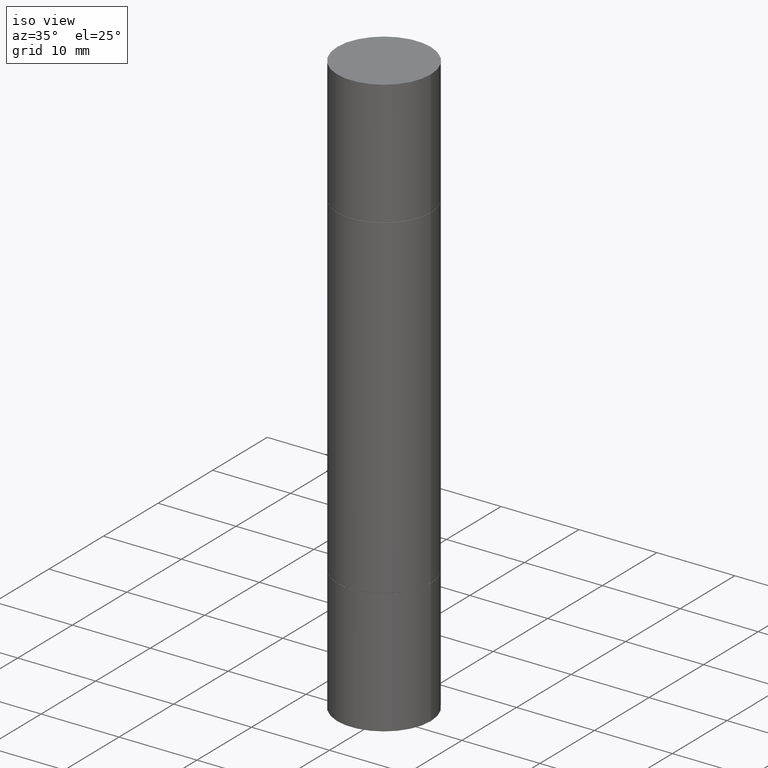
[diagram: clean part render]
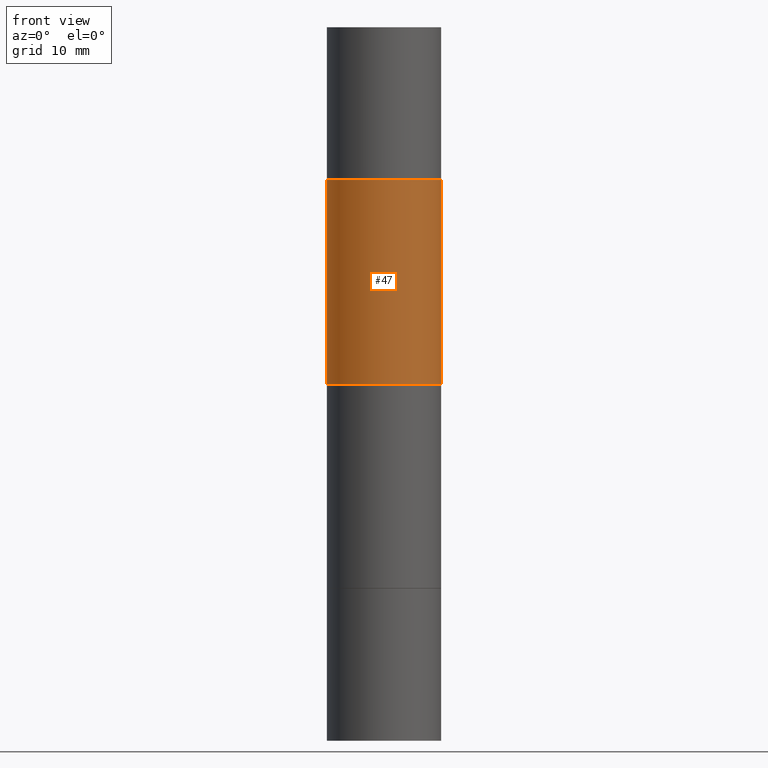
[diagram: tour spotlight — one face highlighted and labeled with its STEP entity id]
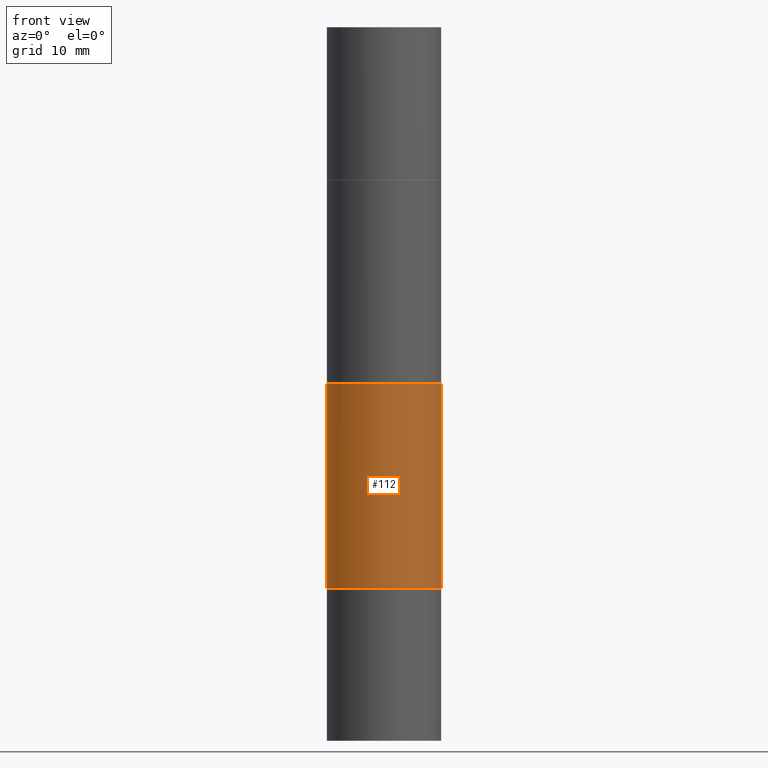
[diagram: tour spotlight — one face highlighted and labeled with its STEP entity id]
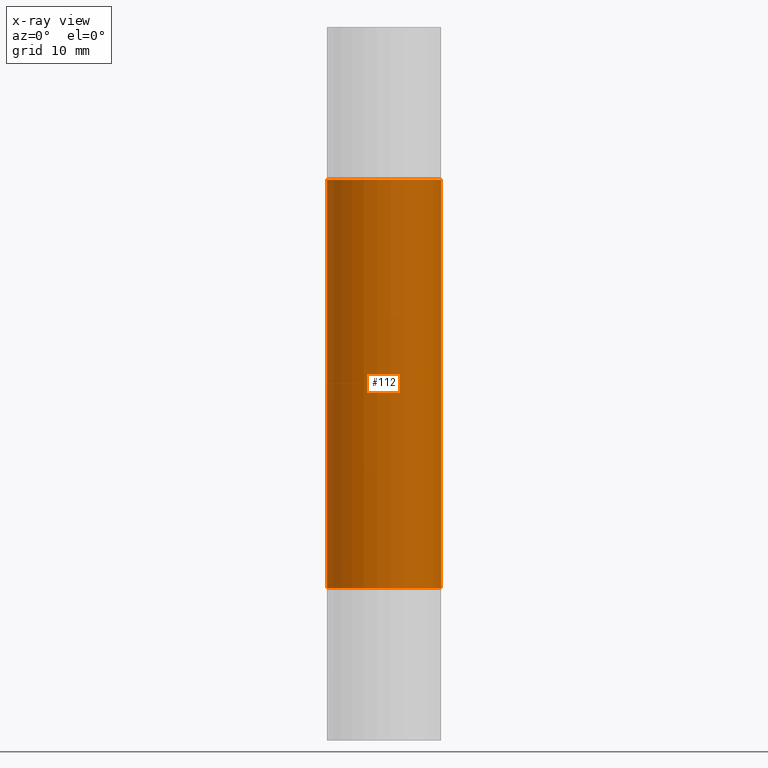
[diagram: x-ray of the same camera — body ghosted, this tour face saturated]
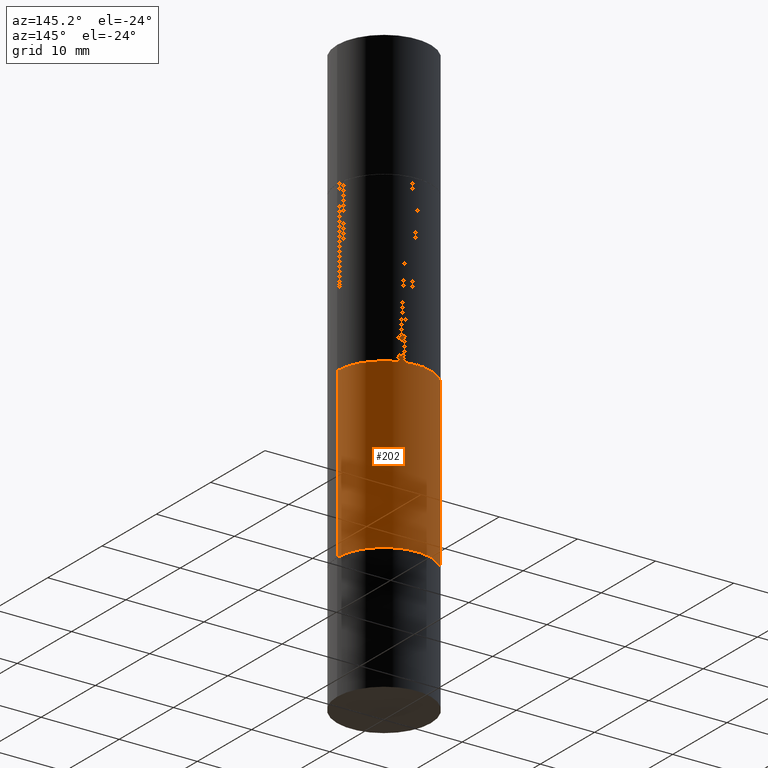
[diagram: tour spotlight — one face highlighted and labeled with its STEP entity id]
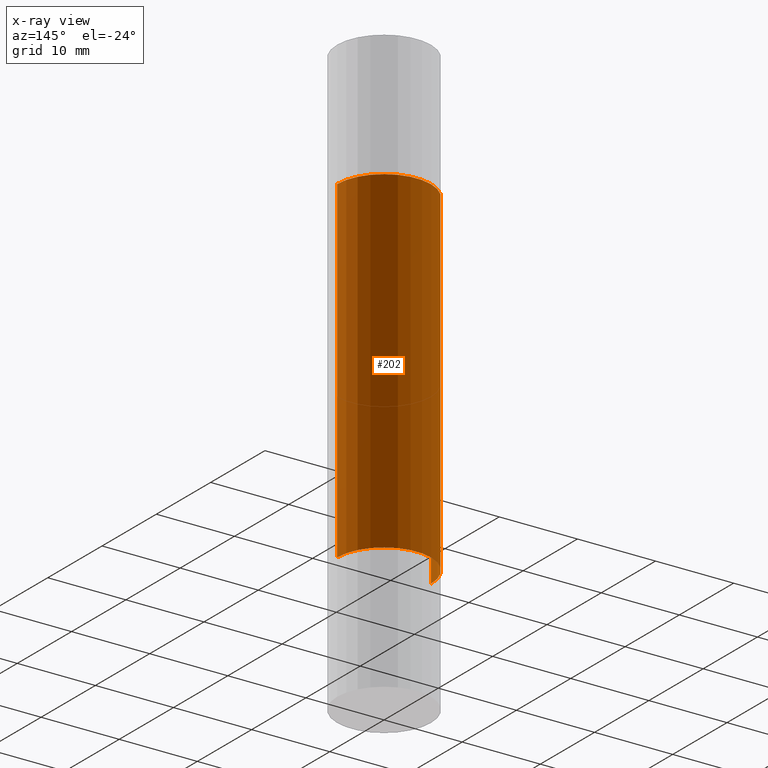
[diagram: x-ray of the same camera — body ghosted, this tour face saturated]
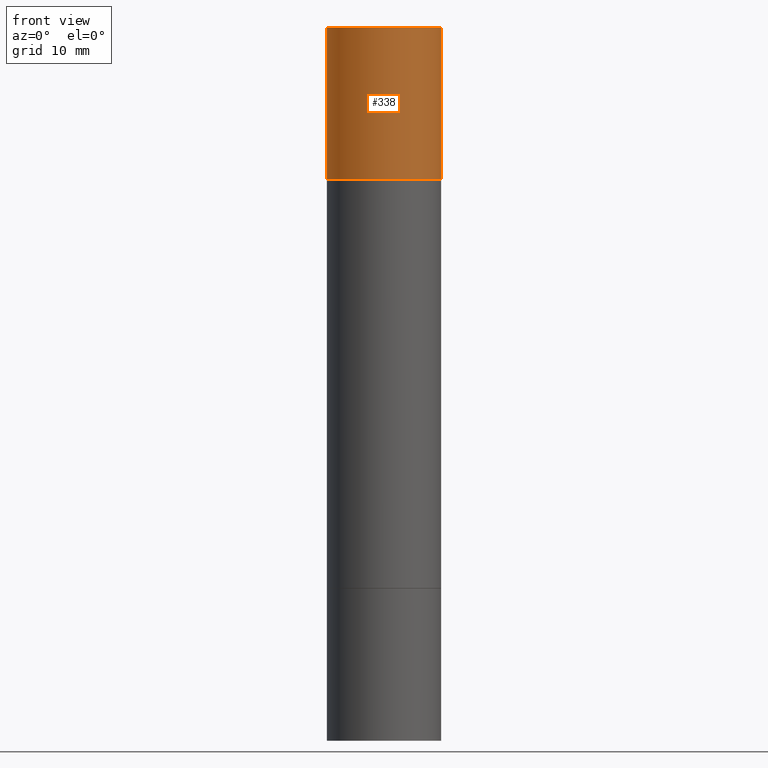
[diagram: tour spotlight — one face highlighted and labeled with its STEP entity id]
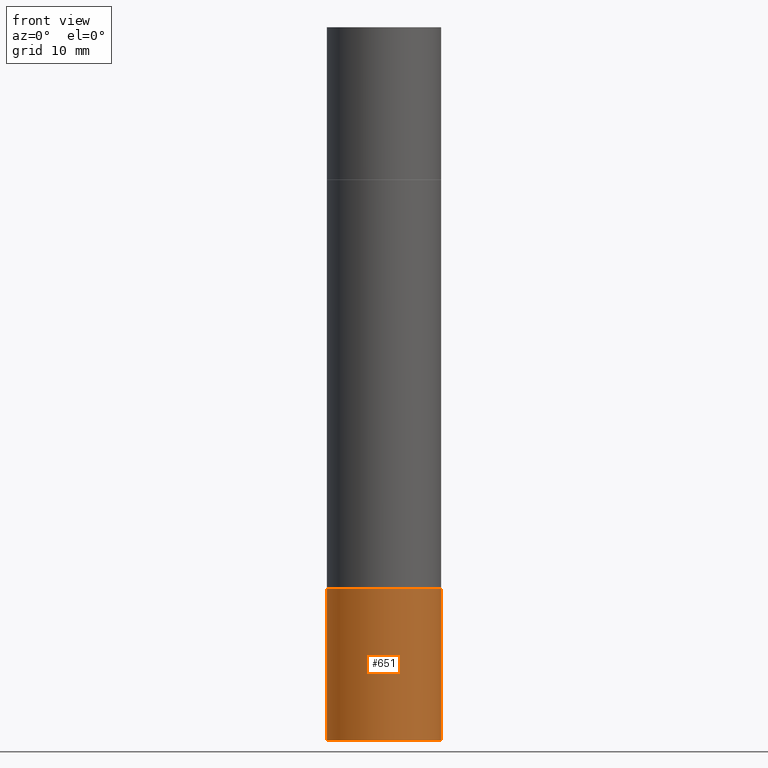
[diagram: tour spotlight — one face highlighted and labeled with its STEP entity id]
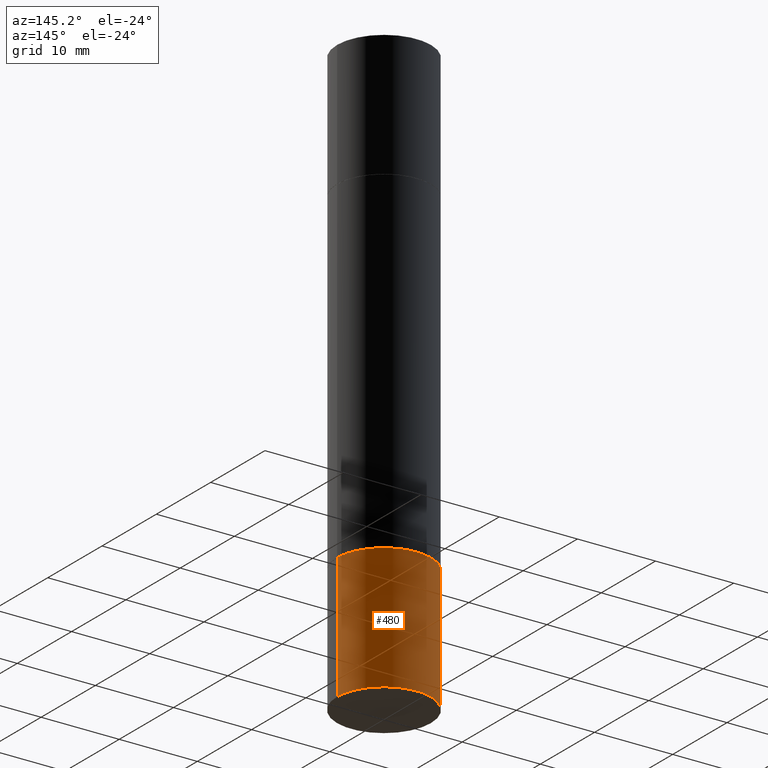
[diagram: tour spotlight — one face highlighted and labeled with its STEP entity id]
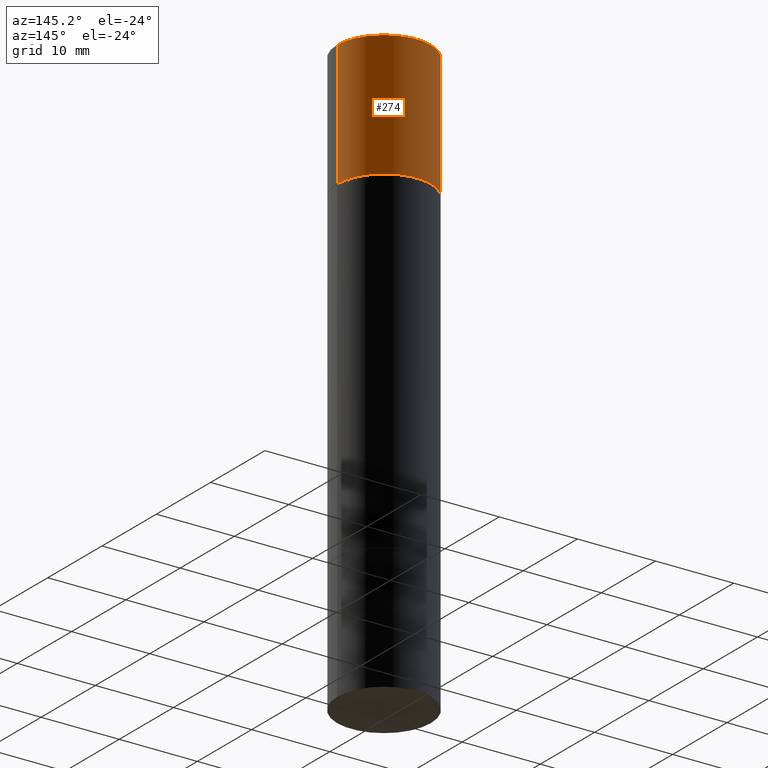
[diagram: tour spotlight — one face highlighted and labeled with its STEP entity id]
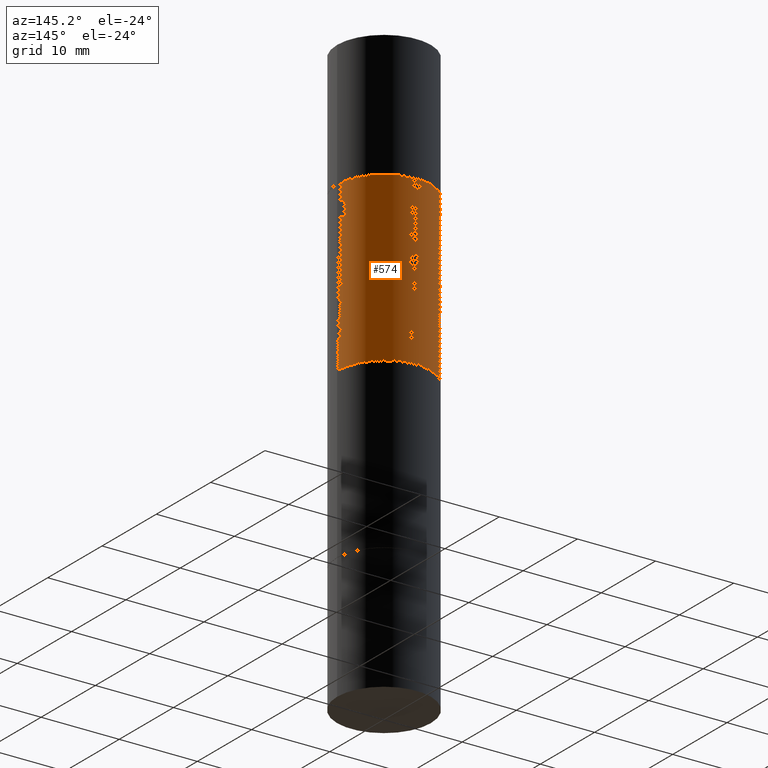
[diagram: tour spotlight — one face highlighted and labeled with its STEP entity id]
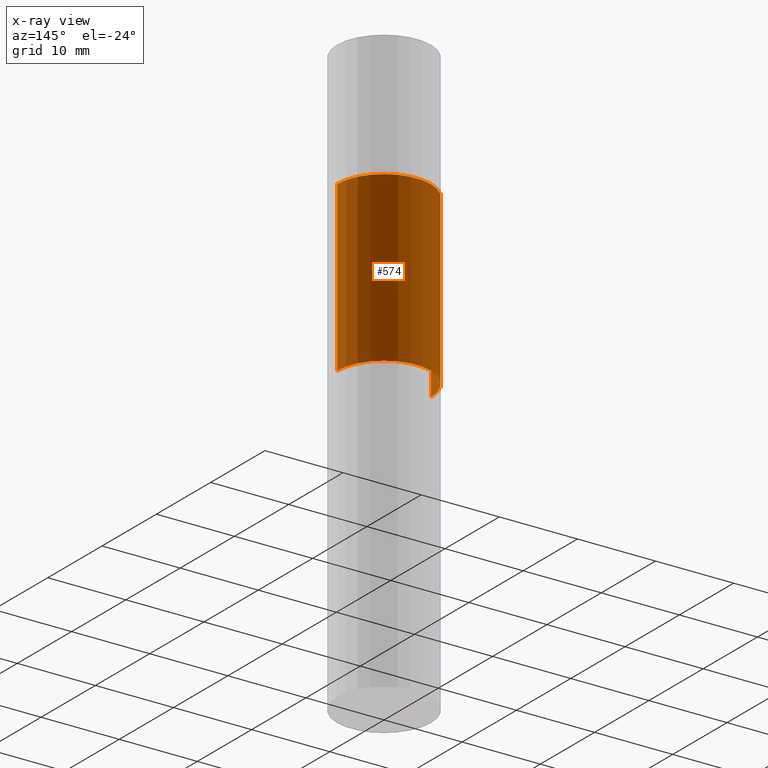
[diagram: x-ray of the same camera — body ghosted, this tour face saturated]
A machine part: a face-by-face anatomy tour. The part has 26 B-rep faces; the first image is the clean iso view, then the 8 largest visible faces are spotlighted one at a time (largest first), each with its STEP entity span.

Face 1 — front view, entity #47. In plain terms, the highlighted cylindrical surface (partial cylindrical patch) has radius 5.9995 mm, axis along (-0, -0, -1).
Definition (entity closure, byte-faithful):
#10 = AXIS2_PLACEMENT_3D ( 'NONE', #135, #549, #554 ) ;
#47 = ADVANCED_FACE ( 'NONE', ( #537 ), #293, .T. ) ;
#68 = DIRECTION ( 'NONE',  ( -2.445468806185136877E-29, -3.492890411551753071E-15, -1.000000000000000000 ) ) ;
#69 = CARTESIAN_POINT ( 'NONE',  ( 0.000000000000000000, -1.031172645228302408E-14, -2.952799999999998981 ) ) ;
#80 = DIRECTION ( 'NONE',  ( -2.445468806185136597E-29, -3.492890411551752677E-15, -1.000000000000000000 ) ) ;
#82 = EDGE_CURVE ( 'NONE', #231, #137, #551, .T. ) ;
#85 = CARTESIAN_POINT ( 'NONE',  ( 0.2361999999999998545, -5.327579411654007610E-15, -1.476399999999999491 ) ) ;
#126 = CARTESIAN_POINT ( 'NONE',  ( -0.2361999999999999933, -5.811345786273763077E-16, -0.6308999999999995723 ) ) ;
#135 = CARTESIAN_POINT ( 'NONE',  ( 5.678134021081268339E-29, -2.201584205701010795E-15, -0.6308999999999995723 ) ) ;
#137 = VERTEX_POINT ( 'NONE', #617 ) ;
#145 = DIRECTION ( 'NONE',  ( -2.445468806185136877E-29, -3.492890411551753071E-15, -1.000000000000000000 ) ) ;
#165 = AXIS2_PLACEMENT_3D ( 'NONE', #69, #80, #290 ) ;
#199 = CARTESIAN_POINT ( 'NONE',  ( 0.2361999999999998545, -1.196110223675252060E-14, -2.952799999999998981 ) ) ;
#201 = EDGE_CURVE ( 'NONE', #341, #231, #448, .T. ) ;
#212 = CARTESIAN_POINT ( 'NONE',  ( 0.2361999999999999933, -3.850959990170508109E-15, -0.6308999999999995723 ) ) ;
#230 = EDGE_CURVE ( 'NONE', #440, #341, #607, .T. ) ;
#231 = VERTEX_POINT ( 'NONE', #85 ) ;
#238 = VECTOR ( 'NONE', #68, 39.37007874015748143 ) ;
#278 = LINE ( 'NONE', #649, #238 ) ;
#290 = DIRECTION ( 'NONE',  ( 1.000000000000000000, -6.982962677686269077E-15, 0.000000000000000000 ) ) ;
#293 = CYLINDRICAL_SURFACE ( 'NONE', #165, 0.2361999999999998545 ) ;
#341 = VERTEX_POINT ( 'NONE', #212 ) ;
#364 = ORIENTED_EDGE ( 'NONE', *, *, #399, .T. ) ;
#382 = CARTESIAN_POINT ( 'NONE',  ( 3.610490145451734531E-29, -5.154823048668018475E-15, -1.476399999999999491 ) ) ;
#399 = EDGE_CURVE ( 'NONE', #440, #137, #278, .T. ) ;
#440 = VERTEX_POINT ( 'NONE', #126 ) ;
#448 = LINE ( 'NONE', #199, #621 ) ;
#488 = DIRECTION ( 'NONE',  ( 0.000000000000000000, 1.000000000000000000, -3.469747663417779369E-15 ) ) ;
#500 = AXIS2_PLACEMENT_3D ( 'NONE', #382, #587, #488 ) ;
#516 = ORIENTED_EDGE ( 'NONE', *, *, #82, .F. ) ;
#537 = FACE_OUTER_BOUND ( 'NONE', #593, .T. ) ;
#549 = DIRECTION ( 'NONE',  ( 2.445468806185136597E-29, 3.492890411551752677E-15, 1.000000000000000000 ) ) ;
#551 = CIRCLE ( 'NONE', #500, 0.2361999999999998545 ) ;
#554 = DIRECTION ( 'NONE',  ( 1.000000000000000000, -6.982962677686266711E-15, 0.000000000000000000 ) ) ;
#587 = DIRECTION ( 'NONE',  ( -0.000000000000000000, -3.492185875197449130E-15, -1.000000000000000000 ) ) ;
#593 = EDGE_LOOP ( 'NONE', ( #673, #364, #516, #661 ) ) ;
#607 = CIRCLE ( 'NONE', #10, 0.2361999999999999933 ) ;
#617 = CARTESIAN_POINT ( 'NONE',  ( -0.2361999999999998545, -2.057754000110877584E-15, -1.476399999999999491 ) ) ;
#621 = VECTOR ( 'NONE', #145, 39.37007874015748143 ) ;
#649 = CARTESIAN_POINT ( 'NONE',  ( -0.2361999999999998545, -8.691276825209390578E-15, -2.952799999999998981 ) ) ;
#661 = ORIENTED_EDGE ( 'NONE', *, *, #201, .F. ) ;
#673 = ORIENTED_EDGE ( 'NONE', *, *, #230, .F. ) ;

Face 2 — front view, entity #112. An x-ray twin of the same camera follows (body ghosted, this face saturated) — the face is partly hidden behind the body. In plain terms, the highlighted cylindrical surface (partial cylindrical patch) has radius 5.9995 mm, axis along (-0, -0, -1).
Definition (entity closure, byte-faithful):
#13 = EDGE_CURVE ( 'NONE', #327, #29, #562, .T. ) ;
#15 = LINE ( 'NONE', #216, #384 ) ;
#19 = DIRECTION ( 'NONE',  ( 2.445468806185136597E-29, 3.492890411551752677E-15, 1.000000000000000000 ) ) ;
#29 = VERTEX_POINT ( 'NONE', #547 ) ;
#50 = EDGE_LOOP ( 'NONE', ( #507, #162, #611, #669 ) ) ;
#112 = ADVANCED_FACE ( 'NONE', ( #499 ), #400, .T. ) ;
#119 = DIRECTION ( 'NONE',  ( -2.445468806185136597E-29, 3.491481338843145583E-15, 1.000000000000000000 ) ) ;
#121 = DIRECTION ( 'NONE',  ( 1.000000000000000000, -6.982962677686269077E-15, 0.000000000000000000 ) ) ;
#162 = ORIENTED_EDGE ( 'NONE', *, *, #535, .T. ) ;
#191 = DIRECTION ( 'NONE',  ( 1.000000000000000000, -6.982962677686269077E-15, 0.000000000000000000 ) ) ;
#214 = AXIS2_PLACEMENT_3D ( 'NONE', #491, #19, #232 ) ;
#216 = CARTESIAN_POINT ( 'NONE',  ( -0.2361999999999998545, -8.691276825209390578E-15, -2.952799999999998981 ) ) ;
#232 = DIRECTION ( 'NONE',  ( 1.000000000000000000, -6.982962677686266711E-15, 0.000000000000000000 ) ) ;
#233 = CARTESIAN_POINT ( 'NONE',  ( 5.678134021081268339E-29, -8.106870520659897761E-15, -2.321899999999999409 ) ) ;
#268 = CARTESIAN_POINT ( 'NONE',  ( 0.2361999999999999933, -3.850959990170508109E-15, -0.6308999999999995723 ) ) ;
#272 = AXIS2_PLACEMENT_3D ( 'NONE', #233, #119, #121 ) ;
#310 = VERTEX_POINT ( 'NONE', #268 ) ;
#323 = CARTESIAN_POINT ( 'NONE',  ( 0.2361999999999998545, -1.196110223675252060E-14, -2.952799999999998981 ) ) ;
#327 = VERTEX_POINT ( 'NONE', #373 ) ;
#328 = EDGE_CURVE ( 'NONE', #310, #29, #515, .T. ) ;
#373 = CARTESIAN_POINT ( 'NONE',  ( -0.2362000000000000210, -3.534373421594380241E-15, -2.321899999999999409 ) ) ;
#384 = VECTOR ( 'NONE', #640, 39.37007874015748143 ) ;
#400 = CYLINDRICAL_SURFACE ( 'NONE', #575, 0.2361999999999998545 ) ;
#457 = DIRECTION ( 'NONE',  ( -2.445468806185136597E-29, -3.492890411551752677E-15, -1.000000000000000000 ) ) ;
#485 = EDGE_CURVE ( 'NONE', #514, #310, #667, .T. ) ;
#487 = VECTOR ( 'NONE', #628, 39.37007874015748143 ) ;
#491 = CARTESIAN_POINT ( 'NONE',  ( 5.678134021081268339E-29, -2.201584205701010795E-15, -0.6308999999999995723 ) ) ;
#499 = FACE_OUTER_BOUND ( 'NONE', #50, .T. ) ;
#507 = ORIENTED_EDGE ( 'NONE', *, *, #485, .F. ) ;
#514 = VERTEX_POINT ( 'NONE', #538 ) ;
#515 = LINE ( 'NONE', #323, #487 ) ;
#535 = EDGE_CURVE ( 'NONE', #514, #327, #15, .T. ) ;
#538 = CARTESIAN_POINT ( 'NONE',  ( -0.2361999999999999933, -5.811345786273763077E-16, -0.6308999999999995723 ) ) ;
#547 = CARTESIAN_POINT ( 'NONE',  ( 0.2361999999999999933, -9.756246305129394287E-15, -2.321899999999999409 ) ) ;
#562 = CIRCLE ( 'NONE', #272, 0.2361999999999999933 ) ;
#575 = AXIS2_PLACEMENT_3D ( 'NONE', #606, #457, #191 ) ;
#606 = CARTESIAN_POINT ( 'NONE',  ( 0.000000000000000000, -1.031172645228302408E-14, -2.952799999999998981 ) ) ;
#611 = ORIENTED_EDGE ( 'NONE', *, *, #13, .T. ) ;
#628 = DIRECTION ( 'NONE',  ( -2.445468806185136877E-29, -3.492890411551753071E-15, -1.000000000000000000 ) ) ;
#640 = DIRECTION ( 'NONE',  ( -2.445468806185136877E-29, -3.492890411551753071E-15, -1.000000000000000000 ) ) ;
#667 = CIRCLE ( 'NONE', #214, 0.2361999999999999933 ) ;
#669 = ORIENTED_EDGE ( 'NONE', *, *, #328, .F. ) ;

Face 3 — auxiliary view, entity #202. An x-ray twin of the same camera follows (body ghosted, this face saturated) — the face is partly hidden behind the body. In plain terms, the highlighted cylindrical surface (partial cylindrical patch) has radius 5.9995 mm, axis along (-0, -0, -1).
Definition (entity closure, byte-faithful):
#15 = LINE ( 'NONE', #216, #384 ) ;
#29 = VERTEX_POINT ( 'NONE', #547 ) ;
#40 = ORIENTED_EDGE ( 'NONE', *, *, #328, .T. ) ;
#86 = AXIS2_PLACEMENT_3D ( 'NONE', #456, #459, #248 ) ;
#98 = ORIENTED_EDGE ( 'NONE', *, *, #535, .F. ) ;
#131 = DIRECTION ( 'NONE',  ( -2.445468806185136597E-29, -3.492890411551752677E-15, -1.000000000000000000 ) ) ;
#198 = DIRECTION ( 'NONE',  ( -2.445468806185136597E-29, 3.491481338843145583E-15, 1.000000000000000000 ) ) ;
#202 = ADVANCED_FACE ( 'NONE', ( #665 ), #513, .T. ) ;
#216 = CARTESIAN_POINT ( 'NONE',  ( -0.2361999999999998545, -8.691276825209390578E-15, -2.952799999999998981 ) ) ;
#248 = DIRECTION ( 'NONE',  ( 1.000000000000000000, -6.982962677686266711E-15, 0.000000000000000000 ) ) ;
#268 = CARTESIAN_POINT ( 'NONE',  ( 0.2361999999999999933, -3.850959990170508109E-15, -0.6308999999999995723 ) ) ;
#301 = CARTESIAN_POINT ( 'NONE',  ( 0.000000000000000000, -1.031172645228302408E-14, -2.952799999999998981 ) ) ;
#310 = VERTEX_POINT ( 'NONE', #268 ) ;
#323 = CARTESIAN_POINT ( 'NONE',  ( 0.2361999999999998545, -1.196110223675252060E-14, -2.952799999999998981 ) ) ;
#327 = VERTEX_POINT ( 'NONE', #373 ) ;
#328 = EDGE_CURVE ( 'NONE', #310, #29, #515, .T. ) ;
#345 = DIRECTION ( 'NONE',  ( 1.000000000000000000, -6.982962677686269077E-15, 0.000000000000000000 ) ) ;
#373 = CARTESIAN_POINT ( 'NONE',  ( -0.2362000000000000210, -3.534373421594380241E-15, -2.321899999999999409 ) ) ;
#384 = VECTOR ( 'NONE', #640, 39.37007874015748143 ) ;
#394 = CIRCLE ( 'NONE', #502, 0.2361999999999999933 ) ;
#444 = CIRCLE ( 'NONE', #86, 0.2361999999999999933 ) ;
#447 = CARTESIAN_POINT ( 'NONE',  ( 5.678134021081268339E-29, -8.106870520659897761E-15, -2.321899999999999409 ) ) ;
#456 = CARTESIAN_POINT ( 'NONE',  ( 5.678134021081268339E-29, -2.201584205701010795E-15, -0.6308999999999995723 ) ) ;
#459 = DIRECTION ( 'NONE',  ( 2.445468806185136597E-29, 3.492890411551752677E-15, 1.000000000000000000 ) ) ;
#487 = VECTOR ( 'NONE', #628, 39.37007874015748143 ) ;
#502 = AXIS2_PLACEMENT_3D ( 'NONE', #447, #198, #508 ) ;
#508 = DIRECTION ( 'NONE',  ( 1.000000000000000000, -6.982962677686269077E-15, 0.000000000000000000 ) ) ;
#513 = CYLINDRICAL_SURFACE ( 'NONE', #539, 0.2361999999999998545 ) ;
#514 = VERTEX_POINT ( 'NONE', #538 ) ;
#515 = LINE ( 'NONE', #323, #487 ) ;
#535 = EDGE_CURVE ( 'NONE', #514, #327, #15, .T. ) ;
#538 = CARTESIAN_POINT ( 'NONE',  ( -0.2361999999999999933, -5.811345786273763077E-16, -0.6308999999999995723 ) ) ;
#539 = AXIS2_PLACEMENT_3D ( 'NONE', #301, #131, #345 ) ;
#547 = CARTESIAN_POINT ( 'NONE',  ( 0.2361999999999999933, -9.756246305129394287E-15, -2.321899999999999409 ) ) ;
#601 = ORIENTED_EDGE ( 'NONE', *, *, #624, .F. ) ;
#624 = EDGE_CURVE ( 'NONE', #310, #514, #444, .T. ) ;
#626 = ORIENTED_EDGE ( 'NONE', *, *, #677, .T. ) ;
#628 = DIRECTION ( 'NONE',  ( -2.445468806185136877E-29, -3.492890411551753071E-15, -1.000000000000000000 ) ) ;
#640 = DIRECTION ( 'NONE',  ( -2.445468806185136877E-29, -3.492890411551753071E-15, -1.000000000000000000 ) ) ;
#644 = EDGE_LOOP ( 'NONE', ( #98, #601, #40, #626 ) ) ;
#665 = FACE_OUTER_BOUND ( 'NONE', #644, .T. ) ;
#677 = EDGE_CURVE ( 'NONE', #29, #327, #394, .T. ) ;

Face 4 — front view, entity #338. In plain terms, the highlighted cylindrical surface (partial cylindrical patch) has radius 5.9995 mm, axis along (-0, -0, -1).
Definition (entity closure, byte-faithful):
#6 = VERTEX_POINT ( 'NONE', #495 ) ;
#9 = CARTESIAN_POINT ( 'NONE',  ( 0.000000000000000000, -1.031172645228302408E-14, -2.952799999999998981 ) ) ;
#46 = DIRECTION ( 'NONE',  ( -2.445468806185136877E-29, -3.492890411551753071E-15, -1.000000000000000000 ) ) ;
#61 = DIRECTION ( 'NONE',  ( 1.000000000000000000, -6.982962677686265133E-15, 0.000000000000000000 ) ) ;
#81 = EDGE_CURVE ( 'NONE', #6, #630, #164, .T. ) ;
#122 = DIRECTION ( 'NONE',  ( 1.000000000000000000, -6.982962677686266711E-15, 0.000000000000000000 ) ) ;
#123 = CARTESIAN_POINT ( 'NONE',  ( -0.2361999999999999933, -8.691276825209387423E-15, -2.952799999999998981 ) ) ;
#147 = AXIS2_PLACEMENT_3D ( 'NONE', #594, #163, #122 ) ;
#159 = DIRECTION ( 'NONE',  ( 2.445468806185136597E-29, 3.492890411551752677E-15, 1.000000000000000000 ) ) ;
#163 = DIRECTION ( 'NONE',  ( 2.445468806185136597E-29, 3.492890411551752677E-15, 1.000000000000000000 ) ) ;
#164 = LINE ( 'NONE', #123, #383 ) ;
#175 = EDGE_CURVE ( 'NONE', #358, #482, #408, .T. ) ;
#215 = CARTESIAN_POINT ( 'NONE',  ( 0.2361999999999999933, -1.647295429522506636E-15, 5.463695987328526437E-16 ) ) ;
#217 = DIRECTION ( 'NONE',  ( -2.445468806185136877E-29, -3.492890411551753071E-15, -1.000000000000000000 ) ) ;
#325 = FACE_OUTER_BOUND ( 'NONE', #618, .T. ) ;
#338 = ADVANCED_FACE ( 'NONE', ( #325 ), #582, .T. ) ;
#358 = VERTEX_POINT ( 'NONE', #215 ) ;
#360 = VECTOR ( 'NONE', #46, 39.37007874015748143 ) ;
#361 = EDGE_CURVE ( 'NONE', #6, #358, #563, .T. ) ;
#376 = DIRECTION ( 'NONE',  ( 1.000000000000000000, -6.982962677686266711E-15, 0.000000000000000000 ) ) ;
#383 = VECTOR ( 'NONE', #217, 39.37007874015748143 ) ;
#388 = ORIENTED_EDGE ( 'NONE', *, *, #81, .T. ) ;
#408 = LINE ( 'NONE', #413, #360 ) ;
#413 = CARTESIAN_POINT ( 'NONE',  ( 0.2361999999999999933, -1.196110223675252060E-14, -2.952799999999998981 ) ) ;
#437 = ORIENTED_EDGE ( 'NONE', *, *, #175, .F. ) ;
#454 = AXIS2_PLACEMENT_3D ( 'NONE', #9, #475, #61 ) ;
#465 = EDGE_CURVE ( 'NONE', #630, #482, #489, .T. ) ;
#475 = DIRECTION ( 'NONE',  ( -2.445468806185136597E-29, -3.492890411551752677E-15, -1.000000000000000000 ) ) ;
#482 = VERTEX_POINT ( 'NONE', #536 ) ;
#489 = CIRCLE ( 'NONE', #147, 0.2361999999999999933 ) ;
#495 = CARTESIAN_POINT ( 'NONE',  ( -0.2361999999999999933, 5.224441469024009929E-16, 5.463695987328566866E-16 ) ) ;
#520 = ORIENTED_EDGE ( 'NONE', *, *, #465, .T. ) ;
#536 = CARTESIAN_POINT ( 'NONE',  ( 0.2361999999999999933, -3.847467099758956361E-15, -0.6298999999999994603 ) ) ;
#563 = CIRCLE ( 'NONE', #636, 0.2361999999999999933 ) ;
#582 = CYLINDRICAL_SURFACE ( 'NONE', #454, 0.2361999999999999933 ) ;
#594 = CARTESIAN_POINT ( 'NONE',  ( 5.680579489887452821E-29, -2.198091315289460230E-15, -0.6298999999999994603 ) ) ;
#598 = ORIENTED_EDGE ( 'NONE', *, *, #361, .F. ) ;
#618 = EDGE_LOOP ( 'NONE', ( #598, #388, #520, #437 ) ) ;
#630 = VERTEX_POINT ( 'NONE', #664 ) ;
#636 = AXIS2_PLACEMENT_3D ( 'NONE', #637, #159, #376 ) ;
#637 = CARTESIAN_POINT ( 'NONE',  ( 7.220980290903470182E-29, 2.080354946989631982E-18, 5.463695987328526437E-16 ) ) ;
#664 = CARTESIAN_POINT ( 'NONE',  ( -0.2361999999999999933, 5.224441469024009929E-16, -0.6298999999999994603 ) ) ;

Face 5 — front view, entity #651. In plain terms, the highlighted cylindrical surface (partial cylindrical patch) has radius 5.9995 mm, axis along (-0, 0, 1).
Definition (entity closure, byte-faithful):
#26 = VERTEX_POINT ( 'NONE', #179 ) ;
#34 = EDGE_CURVE ( 'NONE', #26, #337, #43, .T. ) ;
#43 = CIRCLE ( 'NONE', #530, 0.2361999999999999933 ) ;
#57 = LINE ( 'NONE', #638, #468 ) ;
#73 = CARTESIAN_POINT ( 'NONE',  ( 7.220980290903470182E-29, -1.030964609733603853E-14, -2.952799999999999869 ) ) ;
#79 = LINE ( 'NONE', #195, #136 ) ;
#90 = CARTESIAN_POINT ( 'NONE',  ( 0.2361999999999999933, -9.759737786468237294E-15, -2.322899999999999743 ) ) ;
#136 = VECTOR ( 'NONE', #503, 39.37007874015748143 ) ;
#141 = EDGE_CURVE ( 'NONE', #510, #652, #654, .T. ) ;
#169 = ORIENTED_EDGE ( 'NONE', *, *, #34, .T. ) ;
#179 = CARTESIAN_POINT ( 'NONE',  ( -0.2361999999999999933, -7.531702107802033254E-15, -2.952799999999999869 ) ) ;
#182 = DIRECTION ( 'NONE',  ( 1.000000000000000000, -6.982962677686266711E-15, 4.876176775795936353E-29 ) ) ;
#186 = DIRECTION ( 'NONE',  ( -2.445468806185136597E-29, 3.491481338843145583E-15, 1.000000000000000000 ) ) ;
#195 = CARTESIAN_POINT ( 'NONE',  ( 0.2361999999999999933, -1.649375784469496131E-15, 1.151752954443000088E-29 ) ) ;
#213 = AXIS2_PLACEMENT_3D ( 'NONE', #403, #186, #659 ) ;
#222 = AXIS2_PLACEMENT_3D ( 'NONE', #674, #556, #182 ) ;
#242 = FACE_OUTER_BOUND ( 'NONE', #453, .T. ) ;
#265 = DIRECTION ( 'NONE',  ( -2.445468806185136877E-29, 3.491481338843145188E-15, 1.000000000000000000 ) ) ;
#279 = DIRECTION ( 'NONE',  ( -2.445468806185136597E-29, 3.491481338843145583E-15, 1.000000000000000000 ) ) ;
#304 = ORIENTED_EDGE ( 'NONE', *, *, #309, .F. ) ;
#309 = EDGE_CURVE ( 'NONE', #26, #510, #57, .T. ) ;
#337 = VERTEX_POINT ( 'NONE', #526 ) ;
#403 = CARTESIAN_POINT ( 'NONE',  ( 5.680579489887452821E-29, -8.110362001998742346E-15, -2.322899999999999743 ) ) ;
#433 = CARTESIAN_POINT ( 'NONE',  ( -0.2361999999999999933, -7.531702107802033254E-15, -2.322899999999999743 ) ) ;
#453 = EDGE_LOOP ( 'NONE', ( #304, #169, #471, #534 ) ) ;
#468 = VECTOR ( 'NONE', #265, 39.37007874015748143 ) ;
#471 = ORIENTED_EDGE ( 'NONE', *, *, #599, .T. ) ;
#503 = DIRECTION ( 'NONE',  ( -2.445468806185136877E-29, 3.491481338843145188E-15, 1.000000000000000000 ) ) ;
#510 = VERTEX_POINT ( 'NONE', #433 ) ;
#512 = CYLINDRICAL_SURFACE ( 'NONE', #222, 0.2361999999999999933 ) ;
#526 = CARTESIAN_POINT ( 'NONE',  ( 0.2361999999999999933, -1.195902188180553348E-14, -2.952799999999999869 ) ) ;
#530 = AXIS2_PLACEMENT_3D ( 'NONE', #73, #279, #647 ) ;
#534 = ORIENTED_EDGE ( 'NONE', *, *, #141, .F. ) ;
#556 = DIRECTION ( 'NONE',  ( -2.445468806185136597E-29, 3.491481338843145583E-15, 1.000000000000000000 ) ) ;
#599 = EDGE_CURVE ( 'NONE', #337, #652, #79, .T. ) ;
#638 = CARTESIAN_POINT ( 'NONE',  ( -0.2361999999999999933, 1.678301941865356591E-15, -1.161852468318208757E-29 ) ) ;
#647 = DIRECTION ( 'NONE',  ( 1.000000000000000000, -6.982962677686265133E-15, 0.000000000000000000 ) ) ;
#651 = ADVANCED_FACE ( 'NONE', ( #242 ), #512, .T. ) ;
#652 = VERTEX_POINT ( 'NONE', #90 ) ;
#654 = CIRCLE ( 'NONE', #213, 0.2361999999999999933 ) ;
#659 = DIRECTION ( 'NONE',  ( 1.000000000000000000, -6.982962677686265133E-15, 0.000000000000000000 ) ) ;
#674 = CARTESIAN_POINT ( 'NONE',  ( 0.000000000000000000, 0.000000000000000000, 0.000000000000000000 ) ) ;

Face 6 — auxiliary view, entity #480. In plain terms, the highlighted cylindrical surface (partial cylindrical patch) has radius 5.9995 mm, axis along (-0, 0, 1).
Definition (entity closure, byte-faithful):
#26 = VERTEX_POINT ( 'NONE', #179 ) ;
#27 = CARTESIAN_POINT ( 'NONE',  ( 0.000000000000000000, 0.000000000000000000, 0.000000000000000000 ) ) ;
#57 = LINE ( 'NONE', #638, #468 ) ;
#64 = EDGE_LOOP ( 'NONE', ( #76, #583, #294, #83 ) ) ;
#76 = ORIENTED_EDGE ( 'NONE', *, *, #608, .T. ) ;
#79 = LINE ( 'NONE', #195, #136 ) ;
#83 = ORIENTED_EDGE ( 'NONE', *, *, #599, .F. ) ;
#90 = CARTESIAN_POINT ( 'NONE',  ( 0.2361999999999999933, -9.759737786468237294E-15, -2.322899999999999743 ) ) ;
#120 = DIRECTION ( 'NONE',  ( 1.000000000000000000, -6.982962677686266711E-15, 4.876176775795936353E-29 ) ) ;
#136 = VECTOR ( 'NONE', #503, 39.37007874015748143 ) ;
#138 = DIRECTION ( 'NONE',  ( 1.000000000000000000, -6.982962677686265133E-15, 0.000000000000000000 ) ) ;
#179 = CARTESIAN_POINT ( 'NONE',  ( -0.2361999999999999933, -7.531702107802033254E-15, -2.952799999999999869 ) ) ;
#195 = CARTESIAN_POINT ( 'NONE',  ( 0.2361999999999999933, -1.649375784469496131E-15, 1.151752954443000088E-29 ) ) ;
#261 = AXIS2_PLACEMENT_3D ( 'NONE', #573, #421, #473 ) ;
#265 = DIRECTION ( 'NONE',  ( -2.445468806185136877E-29, 3.491481338843145188E-15, 1.000000000000000000 ) ) ;
#280 = CYLINDRICAL_SURFACE ( 'NONE', #362, 0.2361999999999999933 ) ;
#283 = CIRCLE ( 'NONE', #329, 0.2361999999999999933 ) ;
#294 = ORIENTED_EDGE ( 'NONE', *, *, #312, .F. ) ;
#309 = EDGE_CURVE ( 'NONE', #26, #510, #57, .T. ) ;
#312 = EDGE_CURVE ( 'NONE', #652, #510, #595, .T. ) ;
#329 = AXIS2_PLACEMENT_3D ( 'NONE', #411, #658, #138 ) ;
#337 = VERTEX_POINT ( 'NONE', #526 ) ;
#339 = FACE_OUTER_BOUND ( 'NONE', #64, .T. ) ;
#362 = AXIS2_PLACEMENT_3D ( 'NONE', #27, #486, #120 ) ;
#411 = CARTESIAN_POINT ( 'NONE',  ( 7.220980290903470182E-29, -1.030964609733603853E-14, -2.952799999999999869 ) ) ;
#421 = DIRECTION ( 'NONE',  ( -2.445468806185136597E-29, 3.491481338843145583E-15, 1.000000000000000000 ) ) ;
#433 = CARTESIAN_POINT ( 'NONE',  ( -0.2361999999999999933, -7.531702107802033254E-15, -2.322899999999999743 ) ) ;
#468 = VECTOR ( 'NONE', #265, 39.37007874015748143 ) ;
#473 = DIRECTION ( 'NONE',  ( 1.000000000000000000, -6.982962677686265133E-15, 0.000000000000000000 ) ) ;
#480 = ADVANCED_FACE ( 'NONE', ( #339 ), #280, .T. ) ;
#486 = DIRECTION ( 'NONE',  ( -2.445468806185136597E-29, 3.491481338843145583E-15, 1.000000000000000000 ) ) ;
#503 = DIRECTION ( 'NONE',  ( -2.445468806185136877E-29, 3.491481338843145188E-15, 1.000000000000000000 ) ) ;
#510 = VERTEX_POINT ( 'NONE', #433 ) ;
#526 = CARTESIAN_POINT ( 'NONE',  ( 0.2361999999999999933, -1.195902188180553348E-14, -2.952799999999999869 ) ) ;
#573 = CARTESIAN_POINT ( 'NONE',  ( 5.680579489887452821E-29, -8.110362001998742346E-15, -2.322899999999999743 ) ) ;
#583 = ORIENTED_EDGE ( 'NONE', *, *, #309, .T. ) ;
#595 = CIRCLE ( 'NONE', #261, 0.2361999999999999933 ) ;
#599 = EDGE_CURVE ( 'NONE', #337, #652, #79, .T. ) ;
#608 = EDGE_CURVE ( 'NONE', #337, #26, #283, .T. ) ;
#638 = CARTESIAN_POINT ( 'NONE',  ( -0.2361999999999999933, 1.678301941865356591E-15, -1.161852468318208757E-29 ) ) ;
#652 = VERTEX_POINT ( 'NONE', #90 ) ;
#658 = DIRECTION ( 'NONE',  ( -2.445468806185136597E-29, 3.491481338843145583E-15, 1.000000000000000000 ) ) ;

Face 7 — auxiliary view, entity #274. In plain terms, the highlighted cylindrical surface (partial cylindrical patch) has radius 5.9995 mm, axis along (-0, -0, -1).
Definition (entity closure, byte-faithful):
#2 = AXIS2_PLACEMENT_3D ( 'NONE', #67, #650, #25 ) ;
#6 = VERTEX_POINT ( 'NONE', #495 ) ;
#8 = DIRECTION ( 'NONE',  ( 1.000000000000000000, -6.982962677686265133E-15, 0.000000000000000000 ) ) ;
#25 = DIRECTION ( 'NONE',  ( 1.000000000000000000, -6.982962677686266711E-15, 0.000000000000000000 ) ) ;
#31 = AXIS2_PLACEMENT_3D ( 'NONE', #578, #59, #8 ) ;
#37 = ORIENTED_EDGE ( 'NONE', *, *, #81, .F. ) ;
#39 = DIRECTION ( 'NONE',  ( 1.000000000000000000, -6.982962677686266711E-15, 0.000000000000000000 ) ) ;
#46 = DIRECTION ( 'NONE',  ( -2.445468806185136877E-29, -3.492890411551753071E-15, -1.000000000000000000 ) ) ;
#59 = DIRECTION ( 'NONE',  ( -2.445468806185136597E-29, -3.492890411551752677E-15, -1.000000000000000000 ) ) ;
#67 = CARTESIAN_POINT ( 'NONE',  ( 7.220980290903470182E-29, 2.080354946989631982E-18, 5.463695987328526437E-16 ) ) ;
#81 = EDGE_CURVE ( 'NONE', #6, #630, #164, .T. ) ;
#89 = EDGE_CURVE ( 'NONE', #358, #6, #205, .T. ) ;
#123 = CARTESIAN_POINT ( 'NONE',  ( -0.2361999999999999933, -8.691276825209387423E-15, -2.952799999999998981 ) ) ;
#164 = LINE ( 'NONE', #123, #383 ) ;
#175 = EDGE_CURVE ( 'NONE', #358, #482, #408, .T. ) ;
#176 = EDGE_CURVE ( 'NONE', #482, #630, #585, .T. ) ;
#200 = ORIENTED_EDGE ( 'NONE', *, *, #176, .T. ) ;
#205 = CIRCLE ( 'NONE', #2, 0.2361999999999999933 ) ;
#215 = CARTESIAN_POINT ( 'NONE',  ( 0.2361999999999999933, -1.647295429522506636E-15, 5.463695987328526437E-16 ) ) ;
#217 = DIRECTION ( 'NONE',  ( -2.445468806185136877E-29, -3.492890411551753071E-15, -1.000000000000000000 ) ) ;
#239 = CARTESIAN_POINT ( 'NONE',  ( 5.680579489887452821E-29, -2.198091315289460230E-15, -0.6298999999999994603 ) ) ;
#256 = FACE_OUTER_BOUND ( 'NONE', #419, .T. ) ;
#274 = ADVANCED_FACE ( 'NONE', ( #256 ), #470, .T. ) ;
#276 = ORIENTED_EDGE ( 'NONE', *, *, #89, .F. ) ;
#291 = ORIENTED_EDGE ( 'NONE', *, *, #175, .T. ) ;
#358 = VERTEX_POINT ( 'NONE', #215 ) ;
#360 = VECTOR ( 'NONE', #46, 39.37007874015748143 ) ;
#383 = VECTOR ( 'NONE', #217, 39.37007874015748143 ) ;
#408 = LINE ( 'NONE', #413, #360 ) ;
#413 = CARTESIAN_POINT ( 'NONE',  ( 0.2361999999999999933, -1.196110223675252060E-14, -2.952799999999998981 ) ) ;
#419 = EDGE_LOOP ( 'NONE', ( #37, #276, #291, #200 ) ) ;
#443 = AXIS2_PLACEMENT_3D ( 'NONE', #239, #619, #39 ) ;
#470 = CYLINDRICAL_SURFACE ( 'NONE', #31, 0.2361999999999999933 ) ;
#482 = VERTEX_POINT ( 'NONE', #536 ) ;
#495 = CARTESIAN_POINT ( 'NONE',  ( -0.2361999999999999933, 5.224441469024009929E-16, 5.463695987328566866E-16 ) ) ;
#536 = CARTESIAN_POINT ( 'NONE',  ( 0.2361999999999999933, -3.847467099758956361E-15, -0.6298999999999994603 ) ) ;
#578 = CARTESIAN_POINT ( 'NONE',  ( 0.000000000000000000, -1.031172645228302408E-14, -2.952799999999998981 ) ) ;
#585 = CIRCLE ( 'NONE', #443, 0.2361999999999999933 ) ;
#619 = DIRECTION ( 'NONE',  ( 2.445468806185136597E-29, 3.492890411551752677E-15, 1.000000000000000000 ) ) ;
#630 = VERTEX_POINT ( 'NONE', #664 ) ;
#650 = DIRECTION ( 'NONE',  ( 2.445468806185136597E-29, 3.492890411551752677E-15, 1.000000000000000000 ) ) ;
#664 = CARTESIAN_POINT ( 'NONE',  ( -0.2361999999999999933, 5.224441469024009929E-16, -0.6298999999999994603 ) ) ;

Face 8 — auxiliary view, entity #574. An x-ray twin of the same camera follows (body ghosted, this face saturated) — the face is partly hidden behind the body. In plain terms, the highlighted cylindrical surface (partial cylindrical patch) has radius 5.9995 mm, axis along (-0, -0, -1).
Definition (entity closure, byte-faithful):
#32 = CARTESIAN_POINT ( 'NONE',  ( 3.610490145451734531E-29, -5.154823048668018475E-15, -1.476399999999999491 ) ) ;
#68 = DIRECTION ( 'NONE',  ( -2.445468806185136877E-29, -3.492890411551753071E-15, -1.000000000000000000 ) ) ;
#72 = FACE_OUTER_BOUND ( 'NONE', #414, .T. ) ;
#85 = CARTESIAN_POINT ( 'NONE',  ( 0.2361999999999998545, -5.327579411654007610E-15, -1.476399999999999491 ) ) ;
#94 = DIRECTION ( 'NONE',  ( 1.000000000000000000, -6.982962677686269077E-15, 0.000000000000000000 ) ) ;
#99 = DIRECTION ( 'NONE',  ( -0.000000000000000000, -3.492185875197449130E-15, -1.000000000000000000 ) ) ;
#124 = ORIENTED_EDGE ( 'NONE', *, *, #201, .T. ) ;
#126 = CARTESIAN_POINT ( 'NONE',  ( -0.2361999999999999933, -5.811345786273763077E-16, -0.6308999999999995723 ) ) ;
#137 = VERTEX_POINT ( 'NONE', #617 ) ;
#145 = DIRECTION ( 'NONE',  ( -2.445468806185136877E-29, -3.492890411551753071E-15, -1.000000000000000000 ) ) ;
#194 = ORIENTED_EDGE ( 'NONE', *, *, #269, .F. ) ;
#199 = CARTESIAN_POINT ( 'NONE',  ( 0.2361999999999998545, -1.196110223675252060E-14, -2.952799999999998981 ) ) ;
#201 = EDGE_CURVE ( 'NONE', #341, #231, #448, .T. ) ;
#212 = CARTESIAN_POINT ( 'NONE',  ( 0.2361999999999999933, -3.850959990170508109E-15, -0.6308999999999995723 ) ) ;
#231 = VERTEX_POINT ( 'NONE', #85 ) ;
#238 = VECTOR ( 'NONE', #68, 39.37007874015748143 ) ;
#243 = CARTESIAN_POINT ( 'NONE',  ( 5.678134021081268339E-29, -2.201584205701010795E-15, -0.6308999999999995723 ) ) ;
#246 = DIRECTION ( 'NONE',  ( 1.000000000000000000, -6.982962677686266711E-15, 0.000000000000000000 ) ) ;
#255 = EDGE_CURVE ( 'NONE', #341, #440, #522, .T. ) ;
#269 = EDGE_CURVE ( 'NONE', #137, #231, #319, .T. ) ;
#278 = LINE ( 'NONE', #649, #238 ) ;
#285 = CYLINDRICAL_SURFACE ( 'NONE', #469, 0.2361999999999998545 ) ;
#318 = DIRECTION ( 'NONE',  ( 0.000000000000000000, 1.000000000000000000, -3.469747663417779369E-15 ) ) ;
#319 = CIRCLE ( 'NONE', #427, 0.2361999999999998545 ) ;
#336 = AXIS2_PLACEMENT_3D ( 'NONE', #243, #560, #246 ) ;
#341 = VERTEX_POINT ( 'NONE', #212 ) ;
#399 = EDGE_CURVE ( 'NONE', #440, #137, #278, .T. ) ;
#414 = EDGE_LOOP ( 'NONE', ( #458, #604, #124, #194 ) ) ;
#427 = AXIS2_PLACEMENT_3D ( 'NONE', #32, #99, #318 ) ;
#440 = VERTEX_POINT ( 'NONE', #126 ) ;
#448 = LINE ( 'NONE', #199, #621 ) ;
#458 = ORIENTED_EDGE ( 'NONE', *, *, #399, .F. ) ;
#469 = AXIS2_PLACEMENT_3D ( 'NONE', #545, #613, #94 ) ;
#522 = CIRCLE ( 'NONE', #336, 0.2361999999999999933 ) ;
#545 = CARTESIAN_POINT ( 'NONE',  ( 0.000000000000000000, -1.031172645228302408E-14, -2.952799999999998981 ) ) ;
#560 = DIRECTION ( 'NONE',  ( 2.445468806185136597E-29, 3.492890411551752677E-15, 1.000000000000000000 ) ) ;
#574 = ADVANCED_FACE ( 'NONE', ( #72 ), #285, .T. ) ;
#604 = ORIENTED_EDGE ( 'NONE', *, *, #255, .F. ) ;
#613 = DIRECTION ( 'NONE',  ( -2.445468806185136597E-29, -3.492890411551752677E-15, -1.000000000000000000 ) ) ;
#617 = CARTESIAN_POINT ( 'NONE',  ( -0.2361999999999998545, -2.057754000110877584E-15, -1.476399999999999491 ) ) ;
#621 = VECTOR ( 'NONE', #145, 39.37007874015748143 ) ;
#649 = CARTESIAN_POINT ( 'NONE',  ( -0.2361999999999998545, -8.691276825209390578E-15, -2.952799999999998981 ) ) ;